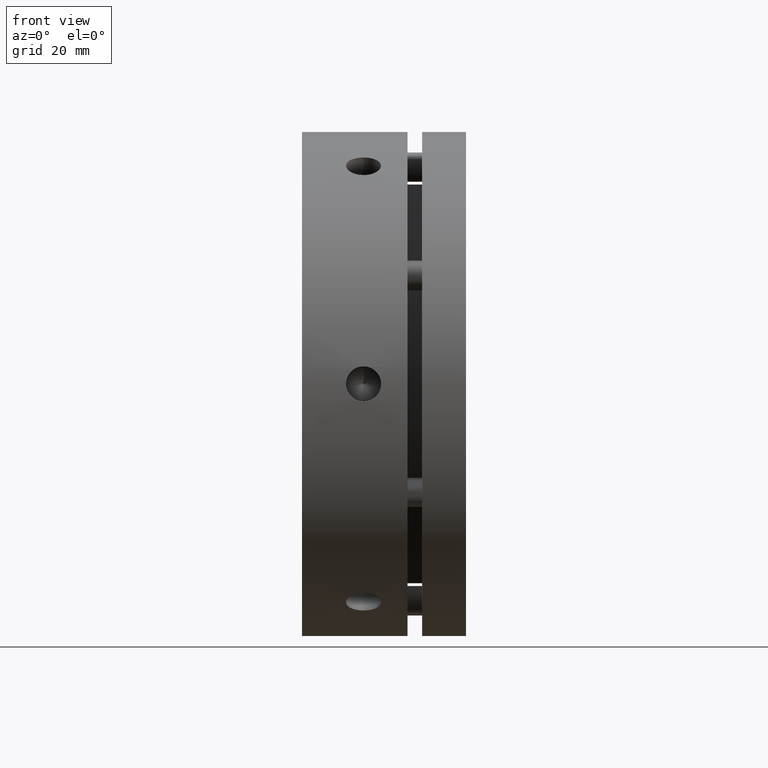
[diagram: clean part render]
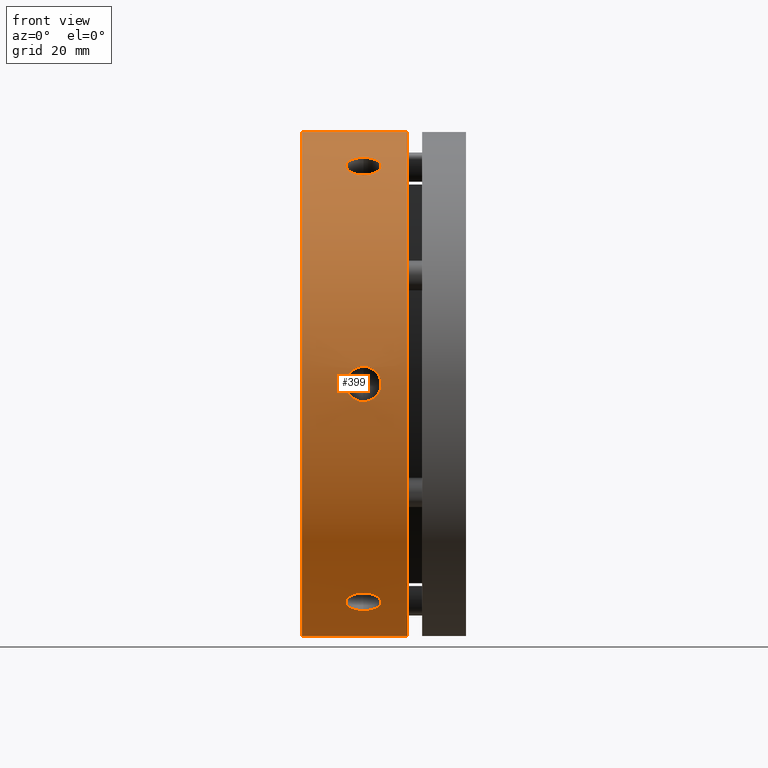
[diagram: same view with one face highlighted and labeled with its STEP entity id]
A machine part, front view. The second image highlights one B-rep face of the part: STEP entity #399.
In plain terms, the highlighted cylindrical surface (partial cylindrical patch) has radius 43 mm, axis along (1, 0, 0).
Its self-contained STEP definition (entity closure, byte-faithful):
#7 = EDGE_LOOP ( 'NONE', ( #4127, #4128 ) ) ;
#8 = EDGE_LOOP ( 'NONE', ( #4129, #4130 ) ) ;
#9 = EDGE_LOOP ( 'NONE', ( #4131, #4132 ) ) ;
#10 = EDGE_LOOP ( 'NONE', ( #4123, #4124, #4125, #4126 ) ) ;
#169 = B_SPLINE_CURVE_WITH_KNOTS ( 'NONE', 3,
 ( #1374, #1372, #1367, #1375, #1376, #1377, #1378, #1379, #1380, #1381, #1382, #1383, #1384, #1385, #1386, #1387, #1388, #1389, #1390, #1391, #1392, #1393, #1394, #1395, #1396, #1397, #1398, #1399, #1400, #1401, #1402, #1403, #1404, #1405 ),
 .UNSPECIFIED., .F., .F.,
 ( 4, 2, 2, 2, 2, 2, 2, 2, 2, 2, 2, 2, 2, 2, 2, 2, 4 ),
 ( 0.01407240567516542500, 0.01465866963904861900, 0.01524493360293181400, 0.01583119756681501000, 0.01641746153069820200, 0.01700372549458139700, 0.01758998945846459300, 0.01817625342234778500, 0.01876251738623098100, 0.01934878135011417600, 0.01993504531399737200, 0.02052130927788056700, 0.02110757324176375900, 0.02169383720564695500, 0.02228010116953015000, 0.02286636513341334200, 0.02345262909729653800 ),
 .UNSPECIFIED. ) ;
#170 = B_SPLINE_CURVE_WITH_KNOTS ( 'NONE', 3,
 ( #1415, #1413, #1408, #1416, #1417, #1418, #1419, #1420, #1421, #1422, #1423, #1424, #1425, #1426, #1427, #1428, #1429, #1430, #1431, #1432, #1433, #1434, #1435, #1436, #1437, #1438, #1439, #1440, #1441, #1442, #1443, #1444, #1445, #1446 ),
 .UNSPECIFIED., .F., .F.,
 ( 4, 2, 2, 2, 2, 2, 2, 2, 2, 2, 2, 2, 2, 2, 2, 2, 4 ),
 ( 0.01407240567516542700, 0.01465866963904862200, 0.01524493360293181800, 0.01583119756681501300, 0.01641746153069820900, 0.01700372549458140400, 0.01758998945846460000, 0.01817625342234779200, 0.01876251738623098800, 0.01934878135011418300, 0.01993504531399737500, 0.02052130927788057100, 0.02110757324176376300, 0.02169383720564695800, 0.02228010116953015000, 0.02286636513341334200, 0.02345262909729653800 ),
 .UNSPECIFIED. ) ;
#171 = B_SPLINE_CURVE_WITH_KNOTS ( 'NONE', 3,
 ( #1456, #1454, #1449, #1457, #1458, #1459, #1460, #1461, #1462, #1463, #1464, #1465, #1466, #1467, #1468, #1469, #1470, #1471, #1472, #1473, #1474, #1475, #1476, #1477, #1478, #1479, #1480, #1481, #1482, #1483, #1484, #1485, #1486, #1487 ),
 .UNSPECIFIED., .F., .F.,
 ( 4, 2, 2, 2, 2, 2, 2, 2, 2, 2, 2, 2, 2, 2, 2, 2, 4 ),
 ( 0.01407240567516541600, 0.01465866963904861000, 0.01524493360293180400, 0.01583119756681499600, 0.01641746153069818800, 0.01700372549458138400, 0.01758998945846457600, 0.01817625342234777100, 0.01876251738623096300, 0.01934878135011415500, 0.01993504531399735100, 0.02052130927788054600, 0.02110757324176373900, 0.02169383720564693400, 0.02228010116953013000, 0.02286636513341332200, 0.02345262909729651700 ),
 .UNSPECIFIED. ) ;
#172 = B_SPLINE_CURVE_WITH_KNOTS ( 'NONE', 3,
 ( #3357, #3358, #3363, #3364, #3365, #3366, #3367, #3368, #3369, #3370, #3371, #3372, #3373, #3374, #3375, #3376, #3377, #3378, #3379, #3380, #3381, #3382, #3383, #3384, #3385, #3386, #3387, #3388, #3389, #3390, #3391, #3392, #3393, #3394 ),
 .UNSPECIFIED., .F., .F.,
 ( 4, 2, 2, 2, 2, 2, 2, 2, 2, 2, 2, 2, 2, 2, 2, 2, 4 ),
 ( 0.004692182248267696800, 0.005278446212448804200, 0.005864710176629911600, 0.006450974140811019000, 0.007037238104992126500, 0.007623502069173233900, 0.008209766033354340400, 0.008796029997535448700, 0.009382293961716557000, 0.009968557925897663500, 0.01055482189007877000, 0.01114108585425987800, 0.01172734981844098700, 0.01231361378262209300, 0.01289987774680320000, 0.01348614171098431000, 0.01407240567516541600 ),
 .UNSPECIFIED. ) ;
#173 = B_SPLINE_CURVE_WITH_KNOTS ( 'NONE', 3,
 ( #3353, #3362, #3397, #3398, #3399, #3400, #3401, #3402, #3403, #3404, #3405, #3406, #3407, #3408, #3409, #3410, #3411, #3412, #3413, #3414, #3415, #3416, #3417, #3418, #3419, #3420, #3421, #3422, #3423, #3424, #3425, #3426, #3427, #3428 ),
 .UNSPECIFIED., .F., .F.,
 ( 4, 2, 2, 2, 2, 2, 2, 2, 2, 2, 2, 2, 2, 2, 2, 2, 4 ),
 ( 0.004692182248267695100, 0.005278446212448803300, 0.005864710176629911600, 0.006450974140811019900, 0.007037238104992128200, 0.007623502069173236500, 0.008209766033354343900, 0.008796029997535453900, 0.009382293961716560400, 0.009968557925897670500, 0.01055482189007877700, 0.01114108585425988700, 0.01172734981844099400, 0.01231361378262210400, 0.01289987774680321000, 0.01348614171098432000, 0.01407240567516542700 ),
 .UNSPECIFIED. ) ;
#267 = B_SPLINE_CURVE_WITH_KNOTS ( 'NONE', 3,
 ( #3396, #3395, #3431, #3432, #3433, #3434, #3435, #3436, #3437, #3438, #3439, #3440, #3441, #3442, #3443, #3444, #3445, #3446, #3447, #3448, #3449, #3450, #3451, #3452, #3453, #3454, #3455, #3456, #3457, #3458, #3459, #3460, #3461, #3462 ),
 .UNSPECIFIED., .F., .F.,
 ( 4, 2, 2, 2, 2, 2, 2, 2, 2, 2, 2, 2, 2, 2, 2, 2, 4 ),
 ( 0.004692182248267691600, 0.005278446212448799900, 0.005864710176629908200, 0.006450974140811016400, 0.007037238104992124700, 0.007623502069173233000, 0.008209766033354340400, 0.008796029997535450400, 0.009382293961716557000, 0.009968557925897667000, 0.01055482189007877400, 0.01114108585425988400, 0.01172734981844099000, 0.01231361378262210000, 0.01289987774680320700, 0.01348614171098431700, 0.01407240567516542300 ),
 .UNSPECIFIED. ) ;
#399 = ADVANCED_FACE ( 'NONE', ( #1859, #1863, #1860, #1862 ), #1867, .T. ) ;
#441 = EDGE_CURVE ( 'NONE', #4163, #4165, #1898, .T. ) ;
#443 = EDGE_CURVE ( 'NONE', #4160, #4166, #1923, .T. ) ;
#446 = EDGE_CURVE ( 'NONE', #4168, #4169, #169, .T. ) ;
#450 = EDGE_CURVE ( 'NONE', #4172, #4173, #170, .T. ) ;
#454 = EDGE_CURVE ( 'NONE', #4176, #4177, #171, .T. ) ;
#1075 = CARTESIAN_POINT ( 'NONE',  ( 13.99999999999998800, 0.0000000000000000000, 0.0000000000000000000 ) ) ;
#1079 = DIRECTION ( 'NONE',  ( 0.0000000000000000000, 0.0000000000000000000, -1.000000000000000000 ) ) ;
#1080 = DIRECTION ( 'NONE',  ( 1.000000000000000000, 0.0000000000000000000, 0.0000000000000000000 ) ) ;
#1323 = DIRECTION ( 'NONE',  ( 1.000000000000000000, 0.0000000000000000000, 0.0000000000000000000 ) ) ;
#1357 = DIRECTION ( 'NONE',  ( 1.000000000000000000, 0.0000000000000000000, 0.0000000000000000000 ) ) ;
#1358 = CARTESIAN_POINT ( 'NONE',  ( 13.99999999999998800, 0.0000000000000000000, -42.99999999999999300 ) ) ;
#1359 = CARTESIAN_POINT ( 'NONE',  ( 13.99999999999998800, 5.265981236333616900E-015, 42.99999999999999300 ) ) ;
#1367 = CARTESIAN_POINT ( 'NONE',  ( 10.10552613216740900, -24.02941537441232700, 35.65934205424055400 ) ) ;
#1372 = CARTESIAN_POINT ( 'NONE',  ( 10.30430124751128100, -24.04568680088052400, 35.64835124201341900 ) ) ;
#1374 = CARTESIAN_POINT ( 'NONE',  ( 10.49999999999999100, -24.04568680088052800, 35.64835124201341200 ) ) ;
#1375 = CARTESIAN_POINT ( 'NONE',  ( 9.720818578756025700, -23.96559241437553200, 35.70226686367964700 ) ) ;
#1376 = CARTESIAN_POINT ( 'NONE',  ( 9.533829466353616100, -23.91839269222586500, 35.73396380531086400 ) ) ;
#1377 = CARTESIAN_POINT ( 'NONE',  ( 9.170639505559195800, -23.79300451804962100, 35.81757409740169600 ) ) ;
#1378 = CARTESIAN_POINT ( 'NONE',  ( 8.995093410617075200, -23.71455650534764500, 35.86964798085616500 ) ) ;
#1379 = CARTESIAN_POINT ( 'NONE',  ( 8.670177341240728800, -23.53274403132896000, 35.98918997243221400 ) ) ;
#1380 = CARTESIAN_POINT ( 'NONE',  ( 8.518719577741647300, -23.42875624669749600, 36.05708022359374400 ) ) ;
#1381 = CARTESIAN_POINT ( 'NONE',  ( 8.238674395418879500, -23.19315007091258000, 36.20907956999141700 ) ) ;
#1382 = CARTESIAN_POINT ( 'NONE',  ( 8.114523938983236200, -23.06521865689925100, 36.29079925853894700 ) ) ;
#1383 = CARTESIAN_POINT ( 'NONE',  ( 7.897363031555651800, -22.79018799329615400, 36.46414339792401200 ) ) ;
#1384 = CARTESIAN_POINT ( 'NONE',  ( 7.803478299203420400, -22.64125678275564700, 36.55689450969202900 ) ) ;
#1385 = CARTESIAN_POINT ( 'NONE',  ( 7.652986253100396000, -22.33136441474646400, 36.74701631794378200 ) ) ;
#1386 = CARTESIAN_POINT ( 'NONE',  ( 7.596287419213736000, -22.17133924247838200, 36.84384175617788100 ) ) ;
#1387 = CARTESIAN_POINT ( 'NONE',  ( 7.519606977150592000, -21.84101102486489400, 37.04061549935513400 ) ) ;
#1388 = CARTESIAN_POINT ( 'NONE',  ( 7.499861966001362600, -21.66984596181665500, 37.14104287104083800 ) ) ;
#1389 = CARTESIAN_POINT ( 'NONE',  ( 7.500139504380230800, -21.32651620832518100, 37.33924203801406300 ) ) ;
#1390 = CARTESIAN_POINT ( 'NONE',  ( 7.519727583784722400, -21.15704466223849800, 37.43549410863681000 ) ) ;
#1391 = CARTESIAN_POINT ( 'NONE',  ( 7.596215647064750200, -20.82238344177399700, 37.62266744665338800 ) ) ;
#1392 = CARTESIAN_POINT ( 'NONE',  ( 7.654050864183206600, -20.65543489794959300, 37.71453295513748600 ) ) ;
#1393 = CARTESIAN_POINT ( 'NONE',  ( 7.804864100698977400, -20.33610732801334800, 37.88767247524063500 ) ) ;
#1394 = CARTESIAN_POINT ( 'NONE',  ( 7.897113453886592400, -20.18408904171516500, 37.96879170827820400 ) ) ;
#1395 = CARTESIAN_POINT ( 'NONE',  ( 8.115012650274902500, -19.89551950952865400, 38.12079350795924200 ) ) ;
#1396 = CARTESIAN_POINT ( 'NONE',  ( 8.241769086800601900, -19.75848154599373900, 38.19190436289177600 ) ) ;
#1397 = CARTESIAN_POINT ( 'NONE',  ( 8.518605179363984100, -19.51224277817819400, 38.31829241541279900 ) ) ;
#1398 = CARTESIAN_POINT ( 'NONE',  ( 8.669658947754603800, -19.40140345623297000, 38.37443924139860500 ) ) ;
#1399 = CARTESIAN_POINT ( 'NONE',  ( 8.997695114693774700, -19.20527931564903000, 38.47296829686038700 ) ) ;
#1400 = CARTESIAN_POINT ( 'NONE',  ( 9.172233547707843800, -19.12179959498432400, 38.51444384508587100 ) ) ;
#1401 = CARTESIAN_POINT ( 'NONE',  ( 9.533241769356855900, -18.98757704960819500, 38.58079214106688000 ) ) ;
#1402 = CARTESIAN_POINT ( 'NONE',  ( 9.722380707338134100, -18.93582048318673500, 38.60616772222714100 ) ) ;
#1403 = CARTESIAN_POINT ( 'NONE',  ( 10.10962670667833900, -18.86662744345624200, 38.64002914696146700 ) ) ;
#1404 = CARTESIAN_POINT ( 'NONE',  ( 10.30430102254328300, -18.84953437817390000, 38.64835124201341900 ) ) ;
#1405 = CARTESIAN_POINT ( 'NONE',  ( 10.49999999999999100, -18.84953437817389600, 38.64835124201341200 ) ) ;
#1408 = CARTESIAN_POINT ( 'NONE',  ( 10.10552613216740700, -42.89660378841725200, -2.980413125209145300 ) ) ;
#1413 = CARTESIAN_POINT ( 'NONE',  ( 10.30430124751128300, -42.89522117905443100, -2.999999999999994200 ) ) ;
#1415 = CARTESIAN_POINT ( 'NONE',  ( 10.49999999999999100, -42.89522117905442400, -2.999999999999994700 ) ) ;
#1416 = CARTESIAN_POINT ( 'NONE',  ( 9.720818578756027500, -42.90186628382573300, -2.903678415753022400 ) ) ;
#1417 = CARTESIAN_POINT ( 'NONE',  ( 9.533829466353619600, -42.90571677942578800, -2.846953786504228900 ) ) ;
#1418 = CARTESIAN_POINT ( 'NONE',  ( 9.170639505559194000, -42.91543132930616600, -2.696559296288032500 ) ) ;
#1419 = CARTESIAN_POINT ( 'NONE',  ( 8.995093410617073500, -42.92130462890043700, -2.602584382684486600 ) ) ;
#1420 = CARTESIAN_POINT ( 'NONE',  ( 8.670177341240734100, -42.93392479341496000, -2.385359165671391100 ) ) ;
#1421 = CARTESIAN_POINT ( 'NONE',  ( 8.518719577741643800, -42.94072558327442800, -2.261357976916510600 ) ) ;
#1422 = CARTESIAN_POINT ( 'NONE',  ( 8.238674395418879500, -42.95455779072096200, -1.981317370199437300 ) ) ;
#1423 = CARTESIAN_POINT ( 'NONE',  ( 8.114523938983236200, -42.96136340998583600, -1.829665671448061200 ) ) ;
#1424 = CARTESIAN_POINT ( 'NONE',  ( 7.897363031555651800, -42.97396850648887300, -1.504810060255561600 ) ) ;
#1425 = CARTESIAN_POINT ( 'NONE',  ( 7.803478299203419500, -42.97982772023900100, -1.329456292627091900 ) ) ;
#1426 = CARTESIAN_POINT ( 'NONE',  ( 7.652986253100396000, -42.98953185199383900, -0.9660207253663535300 ) ) ;
#1427 = CARTESIAN_POINT ( 'NONE',  ( 7.596287419213736000, -42.99337255510310000, -0.7790221418201679300 ) ) ;
#1428 = CARTESIAN_POINT ( 'NONE',  ( 7.519606977150592000, -42.99861950668562800, -0.3945626421914232900 ) ) ;
#1429 = CARTESIAN_POINT ( 'NONE',  ( 7.499861966001362600, -43.00000963027661500, -0.1961156635084322100 ) ) ;
#1430 = CARTESIAN_POINT ( 'NONE',  ( 7.500139504380230800, -42.99999026713861400, 0.2003162083768506000 ) ) ;
#1431 = CARTESIAN_POINT ( 'NONE',  ( 7.519727583784723300, -42.99861123242141800, 0.3952089078179173400 ) ) ;
#1432 = CARTESIAN_POINT ( 'NONE',  ( 7.596215647064750200, -42.99337748782264200, 0.7786206954099609300 ) ) ;
#1433 = CARTESIAN_POINT ( 'NONE',  ( 7.654050864183204800, -42.98946107998925500, 0.9691351297287655900 ) ) ;
#1434 = CARTESIAN_POINT ( 'NONE',  ( 7.804864100698978300, -42.97974051782950500, 1.332250677473882000 ) ) ;
#1435 = CARTESIAN_POINT ( 'NONE',  ( 7.897113453886592400, -42.97398269122646800, 1.504461991766671500 ) ) ;
#1436 = CARTESIAN_POINT ( 'NONE',  ( 8.115012650274900700, -42.96133534507793400, 1.830371437238899100 ) ) ;
#1437 = CARTESIAN_POINT ( 'NONE',  ( 8.241769086800607300, -42.95440017016689900, 1.984605222409297200 ) ) ;
#1438 = CARTESIAN_POINT ( 'NONE',  ( 8.518605179363985900, -42.94073605047715600, 2.261048276994633600 ) ) ;
#1439 = CARTESIAN_POINT ( 'NONE',  ( 8.669658947754605500, -42.93394096715011400, 2.385111358530347800 ) ) ;
#1440 = CARTESIAN_POINT ( 'NONE',  ( 8.997695114693771100, -42.92120756189894600, 2.604224374302321900 ) ) ;
#1441 = CARTESIAN_POINT ( 'NONE',  ( 9.172233547707843800, -42.91538657996574100, 2.697257707211529400 ) ) ;
#1442 = CARTESIAN_POINT ( 'NONE',  ( 9.533241769356855900, -42.90573461709504200, 2.846671989258372700 ) ) ;
#1443 = CARTESIAN_POINT ( 'NONE',  ( 9.722380707338130500, -42.90183223180488200, 2.904182281172142100 ) ) ;
#1444 = CARTESIAN_POINT ( 'NONE',  ( 10.10962670667833800, -42.89656056596788100, 2.981035923710978700 ) ) ;
#1445 = CARTESIAN_POINT ( 'NONE',  ( 10.30430102254327800, -42.89522117905441700, 3.000000000000004000 ) ) ;
#1446 = CARTESIAN_POINT ( 'NONE',  ( 10.49999999999999100, -42.89522117905442400, 3.000000000000005300 ) ) ;
#1449 = CARTESIAN_POINT ( 'NONE',  ( 10.10552613216740900, -18.86718841400494600, -38.63975517944971500 ) ) ;
#1454 = CARTESIAN_POINT ( 'NONE',  ( 10.30430124751128300, -18.84953437817390700, -38.64835124201340500 ) ) ;
#1456 = CARTESIAN_POINT ( 'NONE',  ( 10.49999999999999100, -18.84953437817390700, -38.64835124201339800 ) ) ;
#1457 = CARTESIAN_POINT ( 'NONE',  ( 9.720818578756025700, -18.93627386945020800, -38.60594527943268200 ) ) ;
#1458 = CARTESIAN_POINT ( 'NONE',  ( 9.533829466353616100, -18.98732408719994100, -38.58091759181510100 ) ) ;
#1459 = CARTESIAN_POINT ( 'NONE',  ( 9.170639505559190500, -19.12242681125657400, -38.51413339368973300 ) ) ;
#1460 = CARTESIAN_POINT ( 'NONE',  ( 8.995093410617075200, -19.20674812355282800, -38.47223236354065500 ) ) ;
#1461 = CARTESIAN_POINT ( 'NONE',  ( 8.670177341240732400, -19.40118076208601400, -38.37454913810358900 ) ) ;
#1462 = CARTESIAN_POINT ( 'NONE',  ( 8.518719577741647300, -19.51196933657694600, -38.31843820051026500 ) ) ;
#1463 = CARTESIAN_POINT ( 'NONE',  ( 8.238674395418879500, -19.76140771980841700, -38.19039694019088000 ) ) ;
#1464 = CARTESIAN_POINT ( 'NONE',  ( 8.114523938983236200, -19.89614475308659200, -38.12046492998701600 ) ) ;
#1465 = CARTESIAN_POINT ( 'NONE',  ( 7.897363031555653600, -20.18378051319273700, -37.96895345817955600 ) ) ;
#1466 = CARTESIAN_POINT ( 'NONE',  ( 7.803478299203415100, -20.33857093748336800, -37.88635080231912200 ) ) ;
#1467 = CARTESIAN_POINT ( 'NONE',  ( 7.652986253100393400, -20.65816743724740700, -37.71303704331011600 ) ) ;
#1468 = CARTESIAN_POINT ( 'NONE',  ( 7.596287419213736800, -20.82203331262473300, -37.62286389799805200 ) ) ;
#1469 = CARTESIAN_POINT ( 'NONE',  ( 7.519606977150592900, -21.15760848182074100, -37.43517814154657200 ) ) ;
#1470 = CARTESIAN_POINT ( 'NONE',  ( 7.499861966001363500, -21.33016366845997400, -37.33715853454926000 ) ) ;
#1471 = CARTESIAN_POINT ( 'NONE',  ( 7.500139504380231700, -21.67347405881345400, -37.13892582963723000 ) ) ;
#1472 = CARTESIAN_POINT ( 'NONE',  ( 7.519727583784722400, -21.84156657018293800, -37.04028520081890000 ) ) ;
#1473 = CARTESIAN_POINT ( 'NONE',  ( 7.596215647064750200, -22.17099404604866600, -36.84404675124341800 ) ) ;
#1474 = CARTESIAN_POINT ( 'NONE',  ( 7.654050864183208300, -22.33402618203967900, -36.74539782540871600 ) ) ;
#1475 = CARTESIAN_POINT ( 'NONE',  ( 7.804864100698982700, -22.64363318981618200, -36.55542179776676900 ) ) ;
#1476 = CARTESIAN_POINT ( 'NONE',  ( 7.897113453886588800, -22.78989364951132000, -36.46432971651155700 ) ) ;
#1477 = CARTESIAN_POINT ( 'NONE',  ( 8.115012650274904300, -23.06581583554929800, -36.29042207072034600 ) ) ;
#1478 = CARTESIAN_POINT ( 'NONE',  ( 8.241769086800605500, -23.19591862417317100, -36.20729914048249000 ) ) ;
#1479 = CARTESIAN_POINT ( 'NONE',  ( 8.518605179363985900, -23.42849327229897200, -36.05724413841815600 ) ) ;
#1480 = CARTESIAN_POINT ( 'NONE',  ( 8.669658947754609100, -23.53253751091716200, -35.98932788286825300 ) ) ;
#1481 = CARTESIAN_POINT ( 'NONE',  ( 8.997695114693781800, -23.71592824624992700, -35.86874392255807500 ) ) ;
#1482 = CARTESIAN_POINT ( 'NONE',  ( 9.172233547707845600, -23.79358698498143100, -35.81718613787434400 ) ) ;
#1483 = CARTESIAN_POINT ( 'NONE',  ( 9.533241769356859400, -23.91815756748685500, -35.73412015180851100 ) ) ;
#1484 = CARTESIAN_POINT ( 'NONE',  ( 9.722380707338134100, -23.96601174861817200, -35.70198544105500100 ) ) ;
#1485 = CARTESIAN_POINT ( 'NONE',  ( 10.10962670667833600, -24.02993312251167900, -35.65899322325049100 ) ) ;
#1486 = CARTESIAN_POINT ( 'NONE',  ( 10.30430102254328900, -24.04568680088054900, -35.64835124201342600 ) ) ;
#1487 = CARTESIAN_POINT ( 'NONE',  ( 10.49999999999999100, -24.04568680088053500, -35.64835124201340500 ) ) ;
#1859 = FACE_OUTER_BOUND ( 'NONE', #10, .T. ) ;
#1860 = FACE_BOUND ( 'NONE', #8, .T. ) ;
#1862 = FACE_BOUND ( 'NONE', #9, .T. ) ;
#1863 = FACE_BOUND ( 'NONE', #7, .T. ) ;
#1867 = CYLINDRICAL_SURFACE ( 'NONE', #4664, 42.99999999999999300 ) ;
#1898 = LINE ( 'NONE', #1359, #1922 ) ;
#1922 = VECTOR ( 'NONE', #1323, 1000.000000000000000 ) ;
#1923 = LINE ( 'NONE', #1358, #1925 ) ;
#1925 = VECTOR ( 'NONE', #1357, 1000.000000000000000 ) ;
#2289 = CIRCLE ( 'NONE', #2618, 42.99999999999999300 ) ;
#2291 = CIRCLE ( 'NONE', #2619, 42.99999999999999300 ) ;
#2618 = AXIS2_PLACEMENT_3D ( 'NONE', #3359, #3360, #3361 ) ;
#2619 = AXIS2_PLACEMENT_3D ( 'NONE', #3463, #3464, #3465 ) ;
#3048 = CARTESIAN_POINT ( 'NONE',  ( -1.387778780781445700E-014, 0.0000000000000000000, -42.99999999999999300 ) ) ;
#3051 = CARTESIAN_POINT ( 'NONE',  ( -1.387778780781445700E-014, 5.265981236333616900E-015, 42.99999999999999300 ) ) ;
#3053 = CARTESIAN_POINT ( 'NONE',  ( 17.99999999999998900, 5.265981236333616900E-015, 42.99999999999999300 ) ) ;
#3054 = CARTESIAN_POINT ( 'NONE',  ( 17.99999999999998900, 0.0000000000000000000, -42.99999999999999300 ) ) ;
#3056 = CARTESIAN_POINT ( 'NONE',  ( 10.49999999999999100, -24.04568680088052800, 35.64835124201341200 ) ) ;
#3057 = CARTESIAN_POINT ( 'NONE',  ( 10.49999999999999100, -18.84953437817389600, 38.64835124201341200 ) ) ;
#3060 = CARTESIAN_POINT ( 'NONE',  ( 10.49999999999999100, -42.89522117905442400, -2.999999999999994700 ) ) ;
#3061 = CARTESIAN_POINT ( 'NONE',  ( 10.49999999999999100, -42.89522117905442400, 3.000000000000005300 ) ) ;
#3064 = CARTESIAN_POINT ( 'NONE',  ( 10.49999999999999100, -18.84953437817390700, -38.64835124201339800 ) ) ;
#3065 = CARTESIAN_POINT ( 'NONE',  ( 10.49999999999999100, -24.04568680088053500, -35.64835124201340500 ) ) ;
#3353 = CARTESIAN_POINT ( 'NONE',  ( 10.49999999999999100, -42.89522117905442400, 3.000000000000005300 ) ) ;
#3357 = CARTESIAN_POINT ( 'NONE',  ( 10.49999999999999100, -24.04568680088053500, -35.64835124201340500 ) ) ;
#3358 = CARTESIAN_POINT ( 'NONE',  ( 10.69569897755614100, -24.04568680088053500, -35.64835124201339800 ) ) ;
#3359 = CARTESIAN_POINT ( 'NONE',  ( 17.99999999999998900, 0.0000000000000000000, 0.0000000000000000000 ) ) ;
#3360 = DIRECTION ( 'NONE',  ( -1.000000000000000000, -0.0000000000000000000, -0.0000000000000000000 ) ) ;
#3361 = DIRECTION ( 'NONE',  ( 0.0000000000000000000, 0.0000000000000000000, -1.000000000000000000 ) ) ;
#3362 = CARTESIAN_POINT ( 'NONE',  ( 10.69569897755614100, -42.89522117905442400, 3.000000000000005300 ) ) ;
#3363 = CARTESIAN_POINT ( 'NONE',  ( 10.89447432273169300, -24.02941533652956400, -35.65934207986202900 ) ) ;
#3364 = CARTESIAN_POINT ( 'NONE',  ( 11.27918229366766700, -23.96559223205540700, -35.70226698615798000 ) ) ;
#3365 = CARTESIAN_POINT ( 'NONE',  ( 11.46617160293518400, -23.91839240370317300, -35.73396399879636200 ) ) ;
#3366 = CARTESIAN_POINT ( 'NONE',  ( 11.82936193131701500, -23.79300394134009300, -35.81757448086310100 ) ) ;
#3367 = CARTESIAN_POINT ( 'NONE',  ( 12.00490816074857700, -23.71455576014614400, -35.86964847423720200 ) ) ;
#3368 = CARTESIAN_POINT ( 'NONE',  ( 12.32982445048142000, -23.53274289465440500, -35.98919071638761100 ) ) ;
#3369 = CARTESIAN_POINT ( 'NONE',  ( 12.48128229990723000, -23.42875488478538800, -36.05708110972645400 ) ) ;
#3370 = CARTESIAN_POINT ( 'NONE',  ( 12.76132759179249900, -23.19314818125728600, -36.20908078158002800 ) ) ;
#3371 = CARTESIAN_POINT ( 'NONE',  ( 12.88547798863989900, -23.06521655529334700, -36.29080059565250600 ) ) ;
#3372 = CARTESIAN_POINT ( 'NONE',  ( 13.10263878707466000, -22.79018535032872700, -36.46414505118215700 ) ) ;
#3373 = CARTESIAN_POINT ( 'NONE',  ( 13.19652343038671000, -22.64125382406867400, -36.55689634353742400 ) ) ;
#3374 = CARTESIAN_POINT ( 'NONE',  ( 13.34701513268148100, -22.33136095826451900, -36.74701841986291100 ) ) ;
#3375 = CARTESIAN_POINT ( 'NONE',  ( 13.40371376111226300, -22.17133552691366200, -36.84384399367085900 ) ) ;
#3376 = CARTESIAN_POINT ( 'NONE',  ( 13.48039369446300200, -21.84100676250939400, -37.04061801424159500 ) ) ;
#3377 = CARTESIAN_POINT ( 'NONE',  ( 13.50013839113014700, -21.66984098967761000, -37.14104577047732600 ) ) ;
#3378 = CARTESIAN_POINT ( 'NONE',  ( 13.49986013082450900, -21.32651171236523900, -37.33924460436969600 ) ) ;
#3379 = CARTESIAN_POINT ( 'NONE',  ( 13.48027175252959800, -21.15704039738463000, -37.43549651756941200 ) ) ;
#3380 = CARTESIAN_POINT ( 'NONE',  ( 13.40378317094754500, -20.82237963121384200, -37.62266955423454800 ) ) ;
#3381 = CARTESIAN_POINT ( 'NONE',  ( 13.34594772402287600, -20.65543130567714400, -37.71453492091745100 ) ) ;
#3382 = CARTESIAN_POINT ( 'NONE',  ( 13.19513419182610800, -20.33610431564908400, -37.88767409049662400 ) ) ;
#3383 = CARTESIAN_POINT ( 'NONE',  ( 13.10288473684209100, -20.18408629930887000, -37.96879316486791100 ) ) ;
#3384 = CARTESIAN_POINT ( 'NONE',  ( 12.88498540332631000, -19.89551727821009300, -38.12079467124096500 ) ) ;
#3385 = CARTESIAN_POINT ( 'NONE',  ( 12.75822896284106800, -19.75847959288590200, -38.19190537227504500 ) ) ;
#3386 = CARTESIAN_POINT ( 'NONE',  ( 12.48139295379970500, -19.51224133599011900, -38.31829314874785600 ) ) ;
#3387 = CARTESIAN_POINT ( 'NONE',  ( 12.33033925784325300, -19.40140224050346500, -38.37443985539940200 ) ) ;
#3388 = CARTESIAN_POINT ( 'NONE',  ( 12.00230328732815900, -19.20527850316572600, -38.47296870179528100 ) ) ;
#3389 = CARTESIAN_POINT ( 'NONE',  ( 11.82776503396283600, -19.12179898283486800, -38.51444414868325300 ) ) ;
#3390 = CARTESIAN_POINT ( 'NONE',  ( 11.46675716006615000, -18.98757673638505500, -38.58079229489558800 ) ) ;
#3391 = CARTESIAN_POINT ( 'NONE',  ( 11.27761840516877700, -18.93582028357163000, -38.60616782004643000 ) ) ;
#3392 = CARTESIAN_POINT ( 'NONE',  ( 10.89037284591587400, -18.86662740455203700, -38.64002916586783700 ) ) ;
#3393 = CARTESIAN_POINT ( 'NONE',  ( 10.69569875258814800, -18.84953437817390700, -38.64835124201341200 ) ) ;
#3394 = CARTESIAN_POINT ( 'NONE',  ( 10.49999999999999100, -18.84953437817390700, -38.64835124201339800 ) ) ;
#3395 = CARTESIAN_POINT ( 'NONE',  ( 10.69569897755614100, -18.84953437817390300, 38.64835124201341200 ) ) ;
#3396 = CARTESIAN_POINT ( 'NONE',  ( 10.49999999999999100, -18.84953437817389600, 38.64835124201341200 ) ) ;
#3397 = CARTESIAN_POINT ( 'NONE',  ( 10.89447432273169300, -42.89660379166471000, 2.980413079590975100 ) ) ;
#3398 = CARTESIAN_POINT ( 'NONE',  ( 11.27918229366767000, -42.90186629873501500, 2.903678196619998300 ) ) ;
#3399 = CARTESIAN_POINT ( 'NONE',  ( 11.46617160293517800, -42.90571680272779500, 2.846953439893498600 ) ) ;
#3400 = CARTESIAN_POINT ( 'NONE',  ( 11.82936193131701300, -42.91543137303872200, 2.696558605112236300 ) ) ;
#3401 = CARTESIAN_POINT ( 'NONE',  ( 12.00490816074857700, -42.92130468358022500, 2.602583490630542100 ) ) ;
#3402 = CARTESIAN_POINT ( 'NONE',  ( 12.32982445048142000, -42.93392486936196000, 2.385357809304649000 ) ) ;
#3403 = CARTESIAN_POINT ( 'NONE',  ( 12.48128229990723200, -42.94072566973179800, 2.261356354399666600 ) ) ;
#3404 = CARTESIAN_POINT ( 'NONE',  ( 12.76132759179250100, -42.95455789515985900, 1.981315127915632000 ) ) ;
#3405 = CARTESIAN_POINT ( 'NONE',  ( 12.88547798863990400, -42.96136351715719600, 1.829663182847172600 ) ) ;
#3406 = CARTESIAN_POINT ( 'NONE',  ( 13.10263878707466400, -42.97396861676873000, 1.504806944749533800 ) ) ;
#3407 = CARTESIAN_POINT ( 'NONE',  ( 13.19652343038671200, -42.97982782905221900, 1.329452813406308600 ) ) ;
#3408 = CARTESIAN_POINT ( 'NONE',  ( 13.34701513268148300, -42.98953194406824000, 0.9660166810056074500 ) ) ;
#3409 = CARTESIAN_POINT ( 'NONE',  ( 13.40371376111226500, -42.99337263504649800, 0.7790178053002320100 ) ) ;
#3410 = CARTESIAN_POINT ( 'NONE',  ( 13.48039369446300200, -42.99861955346343500, 0.3945576934400306100 ) ) ;
#3411 = CARTESIAN_POINT ( 'NONE',  ( 13.50013839113014700, -43.00000965519275600, 0.1961099077914556500 ) ) ;
#3412 = CARTESIAN_POINT ( 'NONE',  ( 13.49986013082450900, -42.99999024168781900, -0.2003213851701882400 ) ) ;
#3413 = CARTESIAN_POINT ( 'NONE',  ( 13.48027175252959800, -42.99861118619131200, -0.3952138057560175000 ) ) ;
#3414 = CARTESIAN_POINT ( 'NONE',  ( 13.40378317094754500, -42.99337740776140000, -0.7786250492424435800 ) ) ;
#3415 = CARTESIAN_POINT ( 'NONE',  ( 13.34594772402287600, -42.98946098626843300, -0.9691392236179533500 ) ) ;
#3416 = CARTESIAN_POINT ( 'NONE',  ( 13.19513419182610600, -42.97974041050008500, -1.332254093885856500 ) ) ;
#3417 = CARTESIAN_POINT ( 'NONE',  ( 13.10288473684209100, -42.97398258146700600, -1.504465095055049300 ) ) ;
#3418 = CARTESIAN_POINT ( 'NONE',  ( 12.88498540332631000, -42.96133523685016800, -1.830373951258316400 ) ) ;
#3419 = CARTESIAN_POINT ( 'NONE',  ( 12.75822896284106800, -42.95440006776451000, -1.984607418541927100 ) ) ;
#3420 = CARTESIAN_POINT ( 'NONE',  ( 12.48139295379970500, -42.94073596446993000, -2.261049892633685100 ) ) ;
#3421 = CARTESIAN_POINT ( 'NONE',  ( 12.33033925784325300, -42.93394089102566400, -2.385112718383384700 ) ) ;
#3422 = CARTESIAN_POINT ( 'NONE',  ( 12.00230328732815400, -42.92120750634120400, -2.604225280400945600 ) ) ;
#3423 = CARTESIAN_POINT ( 'NONE',  ( 11.82776503396283200, -42.91538653681406100, -2.697258389147207100 ) ) ;
#3424 = CARTESIAN_POINT ( 'NONE',  ( 11.46675716006614800, -42.90573459370303800, -2.846672337431925400 ) ) ;
#3425 = CARTESIAN_POINT ( 'NONE',  ( 11.27761840516877700, -42.90183221671132700, -2.904182502953535700 ) ) ;
#3426 = CARTESIAN_POINT ( 'NONE',  ( 10.89037284591587400, -42.89656056288920600, -2.981035966856193700 ) ) ;
#3427 = CARTESIAN_POINT ( 'NONE',  ( 10.69569875258815200, -42.89522117905443800, -2.999999999999995600 ) ) ;
#3428 = CARTESIAN_POINT ( 'NONE',  ( 10.49999999999999100, -42.89522117905442400, -2.999999999999994700 ) ) ;
#3431 = CARTESIAN_POINT ( 'NONE',  ( 10.89447432273169100, -18.86718845513516700, 38.63975515945301700 ) ) ;
#3432 = CARTESIAN_POINT ( 'NONE',  ( 11.27918229366766700, -18.93627406667959400, 38.60594518277797200 ) ) ;
#3433 = CARTESIAN_POINT ( 'NONE',  ( 11.46617160293518400, -18.98732439902464700, 38.58091743868986600 ) ) ;
#3434 = CARTESIAN_POINT ( 'NONE',  ( 11.82936193131701500, -19.12242743169864000, 38.51413308597532400 ) ) ;
#3435 = CARTESIAN_POINT ( 'NONE',  ( 12.00490816074857400, -19.20674892343408800, 38.47223196486774600 ) ) ;
#3436 = CARTESIAN_POINT ( 'NONE',  ( 12.32982445048142000, -19.40118197470756900, 38.37454852569225500 ) ) ;
#3437 = CARTESIAN_POINT ( 'NONE',  ( 12.48128229990722800, -19.51197078494643100, 38.31843746412612000 ) ) ;
#3438 = CARTESIAN_POINT ( 'NONE',  ( 12.76132759179250100, -19.76140971390258000, 38.19039590949567000 ) ) ;
#3439 = CARTESIAN_POINT ( 'NONE',  ( 12.88547798863990000, -19.89614696186384900, 38.12046377849969000 ) ) ;
#3440 = CARTESIAN_POINT ( 'NONE',  ( 13.10263878707466000, -20.18378326644002400, 37.96895199593171800 ) ) ;
#3441 = CARTESIAN_POINT ( 'NONE',  ( 13.19652343038671000, -20.33857400498355600, 37.88634915694375800 ) ) ;
#3442 = CARTESIAN_POINT ( 'NONE',  ( 13.34701513268148300, -20.65817098580373600, 37.71303510086853800 ) ) ;
#3443 = CARTESIAN_POINT ( 'NONE',  ( 13.40371376111226500, -20.82203710813286100, 37.62286179897110100 ) ) ;
#3444 = CARTESIAN_POINT ( 'NONE',  ( 13.48039369446300200, -21.15761279095406900, 37.43517570768164400 ) ) ;
#3445 = CARTESIAN_POINT ( 'NONE',  ( 13.50013839113014700, -21.33016866551515600, 37.33715567826877900 ) ) ;
#3446 = CARTESIAN_POINT ( 'NONE',  ( 13.49986013082450900, -21.67347852932258000, 37.13892321919951200 ) ) ;
#3447 = CARTESIAN_POINT ( 'NONE',  ( 13.48027175252959800, -21.84157078880670600, 37.04028271181340400 ) ) ;
#3448 = CARTESIAN_POINT ( 'NONE',  ( 13.40378317094754500, -22.17099777654758300, 36.84404450499211900 ) ) ;
#3449 = CARTESIAN_POINT ( 'NONE',  ( 13.34594772402287600, -22.33402968059129600, 36.74539569729950700 ) ) ;
#3450 = CARTESIAN_POINT ( 'NONE',  ( 13.19513419182610600, -22.64363609485101500, 36.55541999661076600 ) ) ;
#3451 = CARTESIAN_POINT ( 'NONE',  ( 13.10288473684209300, -22.78989628215815300, 36.46432806981287900 ) ) ;
#3452 = CARTESIAN_POINT ( 'NONE',  ( 12.88498540332630600, -23.06581795864008900, 36.29042071998264200 ) ) ;
#3453 = CARTESIAN_POINT ( 'NONE',  ( 12.75822896284107300, -23.19592047487862600, 36.20729795373311100 ) ) ;
#3454 = CARTESIAN_POINT ( 'NONE',  ( 12.48139295379970500, -23.42849462847981800, 36.05724325611417700 ) ) ;
#3455 = CARTESIAN_POINT ( 'NONE',  ( 12.33033925784325300, -23.53253865052220600, 35.98932713701601900 ) ) ;
#3456 = CARTESIAN_POINT ( 'NONE',  ( 12.00230328732815400, -23.71592900317547100, 35.86874342139433500 ) ) ;
#3457 = CARTESIAN_POINT ( 'NONE',  ( 11.82776503396283400, -23.79358755397921100, 35.81718575953603800 ) ) ;
#3458 = CARTESIAN_POINT ( 'NONE',  ( 11.46675716006615400, -23.91815785731800800, 35.73411995746367600 ) ) ;
#3459 = CARTESIAN_POINT ( 'NONE',  ( 11.27761840516877500, -23.96601193313970800, 35.70198531709289100 ) ) ;
#3460 = CARTESIAN_POINT ( 'NONE',  ( 10.89037284591587400, -24.02993315833718000, 35.65899319901164700 ) ) ;
#3461 = CARTESIAN_POINT ( 'NONE',  ( 10.69569875258815200, -24.04568680088052400, 35.64835124201341200 ) ) ;
#3462 = CARTESIAN_POINT ( 'NONE',  ( 10.49999999999999100, -24.04568680088052800, 35.64835124201341200 ) ) ;
#3463 = CARTESIAN_POINT ( 'NONE',  ( -1.387778780781445700E-014, 0.0000000000000000000, 0.0000000000000000000 ) ) ;
#3464 = DIRECTION ( 'NONE',  ( 1.000000000000000000, 0.0000000000000000000, 0.0000000000000000000 ) ) ;
#3465 = DIRECTION ( 'NONE',  ( 0.0000000000000000000, 0.0000000000000000000, -1.000000000000000000 ) ) ;
#4123 = ORIENTED_EDGE ( 'NONE', *, *, #441, .F. ) ;
#4124 = ORIENTED_EDGE ( 'NONE', *, *, #4530, .T. ) ;
#4125 = ORIENTED_EDGE ( 'NONE', *, *, #443, .T. ) ;
#4126 = ORIENTED_EDGE ( 'NONE', *, *, #4526, .T. ) ;
#4127 = ORIENTED_EDGE ( 'NONE', *, *, #446, .T. ) ;
#4128 = ORIENTED_EDGE ( 'NONE', *, *, #4529, .T. ) ;
#4129 = ORIENTED_EDGE ( 'NONE', *, *, #450, .T. ) ;
#4130 = ORIENTED_EDGE ( 'NONE', *, *, #4528, .T. ) ;
#4131 = ORIENTED_EDGE ( 'NONE', *, *, #454, .T. ) ;
#4132 = ORIENTED_EDGE ( 'NONE', *, *, #4527, .T. ) ;
#4160 = VERTEX_POINT ( 'NONE', #3048 ) ;
#4163 = VERTEX_POINT ( 'NONE', #3051 ) ;
#4165 = VERTEX_POINT ( 'NONE', #3053 ) ;
#4166 = VERTEX_POINT ( 'NONE', #3054 ) ;
#4168 = VERTEX_POINT ( 'NONE', #3056 ) ;
#4169 = VERTEX_POINT ( 'NONE', #3057 ) ;
#4172 = VERTEX_POINT ( 'NONE', #3060 ) ;
#4173 = VERTEX_POINT ( 'NONE', #3061 ) ;
#4176 = VERTEX_POINT ( 'NONE', #3064 ) ;
#4177 = VERTEX_POINT ( 'NONE', #3065 ) ;
#4526 = EDGE_CURVE ( 'NONE', #4166, #4165, #2289, .T. ) ;
#4527 = EDGE_CURVE ( 'NONE', #4177, #4176, #172, .T. ) ;
#4528 = EDGE_CURVE ( 'NONE', #4173, #4172, #173, .T. ) ;
#4529 = EDGE_CURVE ( 'NONE', #4169, #4168, #267, .T. ) ;
#4530 = EDGE_CURVE ( 'NONE', #4163, #4160, #2291, .T. ) ;
#4664 = AXIS2_PLACEMENT_3D ( 'NONE', #1075, #1080, #1079 ) ;